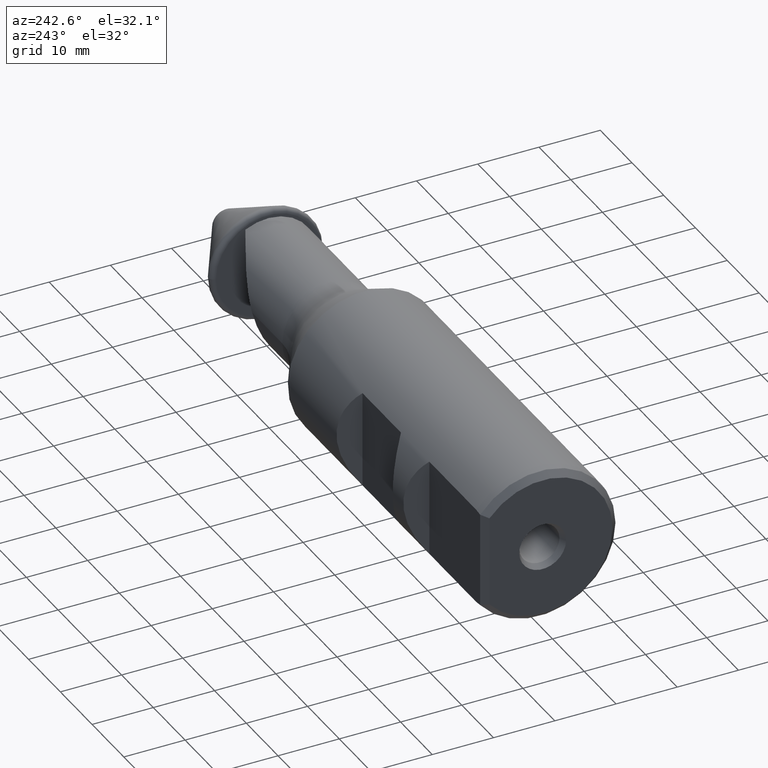
[diagram: clean part render]
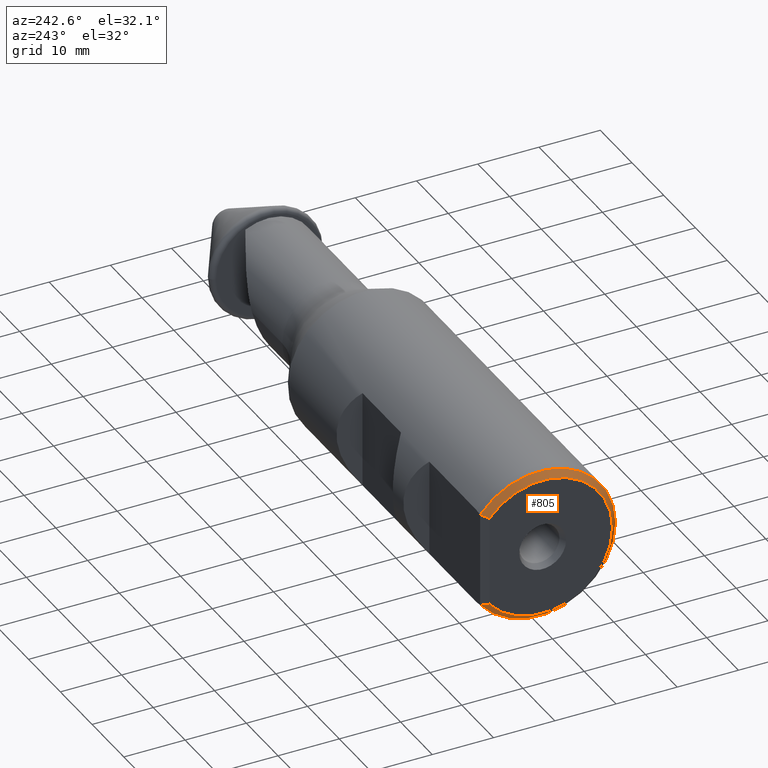
[diagram: same view with one face highlighted and labeled with its STEP entity id]
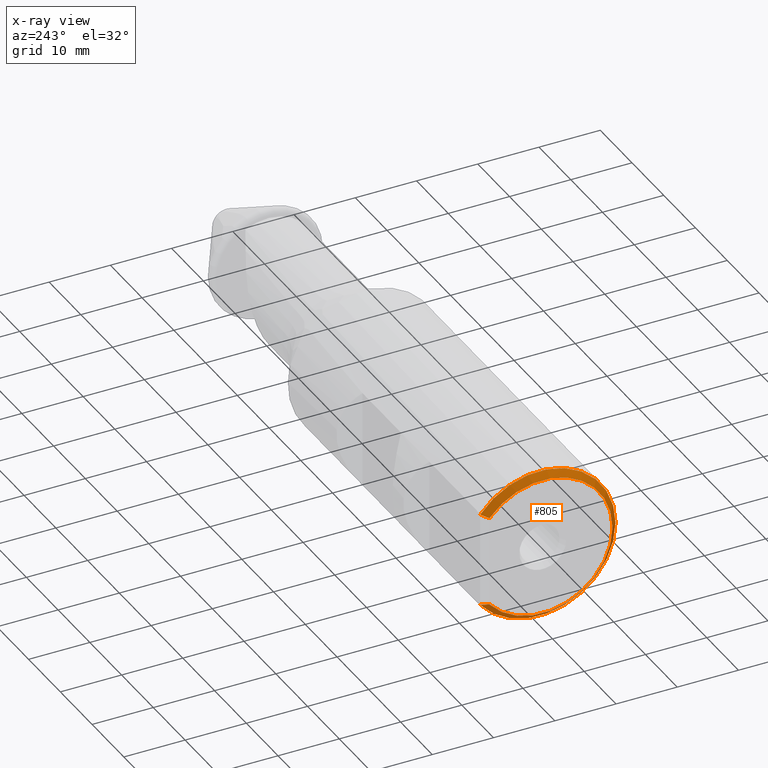
[diagram: x-ray of the same camera — body ghosted, the highlighted face saturated]
A machine part, auxiliary view. The second image highlights one B-rep face of the part: STEP entity #805.
The next image is the same camera in x-ray: the body ghosted, the highlighted face saturated — about 0% of this face is hidden behind the body in this view.
In plain terms, the highlighted conical surface has half-angle 45 deg.
Its self-contained STEP definition (entity closure, byte-faithful):
#13 = CARTESIAN_POINT ( 'NONE',  ( -105.9000000000000100, 9.699999999999988600, 7.724635913750236500 ) ) ;
#24 = DIRECTION ( 'NONE',  ( 0.0000000000000000000, 1.000000000000000000, 0.0000000000000000000 ) ) ;
#25 = ORIENTED_EDGE ( 'NONE', *, *, #71, .T. ) ;
#29 = DIRECTION ( 'NONE',  ( 1.000000000000000000, 1.223020211043870700E-016, -0.0000000000000000000 ) ) ;
#32 = CARTESIAN_POINT ( 'NONE',  ( -106.9000000000000100, 8.699999999999976200, -7.366817494685218300 ) ) ;
#34 = CARTESIAN_POINT ( 'NONE',  ( -105.9000000000000100, -1.412524156707470700E-014, 0.0000000000000000000 ) ) ;
#36 = EDGE_CURVE ( 'NONE', #811, #43, #335, .T. ) ;
#37 = DIRECTION ( 'NONE',  ( 0.0000000000000000000, 1.000000000000000000, 0.0000000000000000000 ) ) ;
#43 = VERTEX_POINT ( 'NONE', #651 ) ;
#63 = CARTESIAN_POINT ( 'NONE',  ( -105.9000000000000100, -1.412524156707470700E-014, 0.0000000000000000000 ) ) ;
#66 = ORIENTED_EDGE ( 'NONE', *, *, #1105, .T. ) ;
#71 = EDGE_CURVE ( 'NONE', #1008, #1055, #702, .T. ) ;
#73 = DIRECTION ( 'NONE',  ( 1.000000000000000000, 1.223020211043870700E-016, -0.0000000000000000000 ) ) ;
#203 = CARTESIAN_POINT ( 'NONE',  ( -106.5671585454246800, 9.032841454575317300, 7.488806661377853200 ) ) ;
#231 = CIRCLE ( 'NONE', #840, 12.40000000000000000 ) ;
#270 = DIRECTION ( 'NONE',  ( 0.0000000000000000000, 1.000000000000000000, 0.0000000000000000000 ) ) ;
#274 = DIRECTION ( 'NONE',  ( 1.000000000000000000, 1.223020211043870700E-016, -0.0000000000000000000 ) ) ;
#276 = CIRCLE ( 'NONE', #690, 11.40000000000000000 ) ;
#279 = CARTESIAN_POINT ( 'NONE',  ( -106.9000000000000100, -1.424754358817909300E-014, 0.0000000000000000000 ) ) ;
#335 = B_SPLINE_CURVE_WITH_KNOTS ( 'NONE', 3,
 ( #377, #814, #203, #454 ),
 .UNSPECIFIED., .F., .F.,
 ( 4, 4 ),
 ( 2.913490185875679700E-007, 0.001459069612162861800 ),
 .UNSPECIFIED. ) ;
#377 = CARTESIAN_POINT ( 'NONE',  ( -105.9000000000000100, 9.699999999999988600, 7.724635913750236500 ) ) ;
#380 = CARTESIAN_POINT ( 'NONE',  ( -106.2337933991562700, 9.366206600843726800, -7.607964760859060100 ) ) ;
#401 = ORIENTED_EDGE ( 'NONE', *, *, #36, .T. ) ;
#433 = CARTESIAN_POINT ( 'NONE',  ( -105.9000000000000100, 9.699999999999988600, -7.724635913753283800 ) ) ;
#446 = CARTESIAN_POINT ( 'NONE',  ( -106.9000000000000100, 8.699999999999976200, -7.366817494685218300 ) ) ;
#454 = CARTESIAN_POINT ( 'NONE',  ( -106.9000000000000100, 8.699999999999976200, 7.366817494685218300 ) ) ;
#651 = CARTESIAN_POINT ( 'NONE',  ( -106.9000000000000100, 8.699999999999976200, 7.366817494685218300 ) ) ;
#656 = CARTESIAN_POINT ( 'NONE',  ( -105.9000000000000100, 9.699999999999988600, -7.724635913753283800 ) ) ;
#690 = AXIS2_PLACEMENT_3D ( 'NONE', #279, #274, #270 ) ;
#702 = B_SPLINE_CURVE_WITH_KNOTS ( 'NONE', 3,
 ( #32, #820, #380, #656 ),
 .UNSPECIFIED., .F., .F.,
 ( 4, 4 ),
 ( 2.921820456633550900E-007, 0.001459070445190683400 ),
 .UNSPECIFIED. ) ;
#710 = CONICAL_SURFACE ( 'NONE', #897, 12.40000000000000000, 0.7853981633974473900 ) ;
#724 = FACE_OUTER_BOUND ( 'NONE', #890, .T. ) ;
#804 = EDGE_CURVE ( 'NONE', #811, #1055, #231, .T. ) ;
#805 = ADVANCED_FACE ( 'NONE', ( #724 ), #710, .T. ) ;
#811 = VERTEX_POINT ( 'NONE', #13 ) ;
#814 = CARTESIAN_POINT ( 'NONE',  ( -106.2337933991566100, 9.366206600843384000, 7.607964760858936700 ) ) ;
#820 = CARTESIAN_POINT ( 'NONE',  ( -106.5671585454244900, 9.032841454575489600, -7.488806661377918100 ) ) ;
#840 = AXIS2_PLACEMENT_3D ( 'NONE', #34, #29, #24 ) ;
#890 = EDGE_LOOP ( 'NONE', ( #1070, #401, #66, #25 ) ) ;
#897 = AXIS2_PLACEMENT_3D ( 'NONE', #63, #73, #37 ) ;
#1008 = VERTEX_POINT ( 'NONE', #446 ) ;
#1055 = VERTEX_POINT ( 'NONE', #433 ) ;
#1070 = ORIENTED_EDGE ( 'NONE', *, *, #804, .F. ) ;
#1105 = EDGE_CURVE ( 'NONE', #43, #1008, #276, .T. ) ;